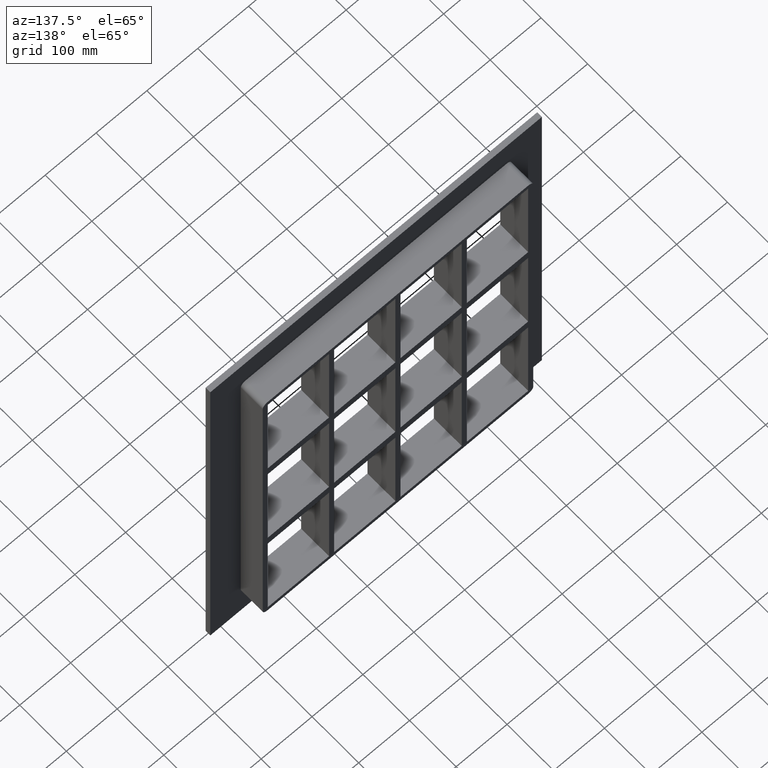
[diagram: clean part render]
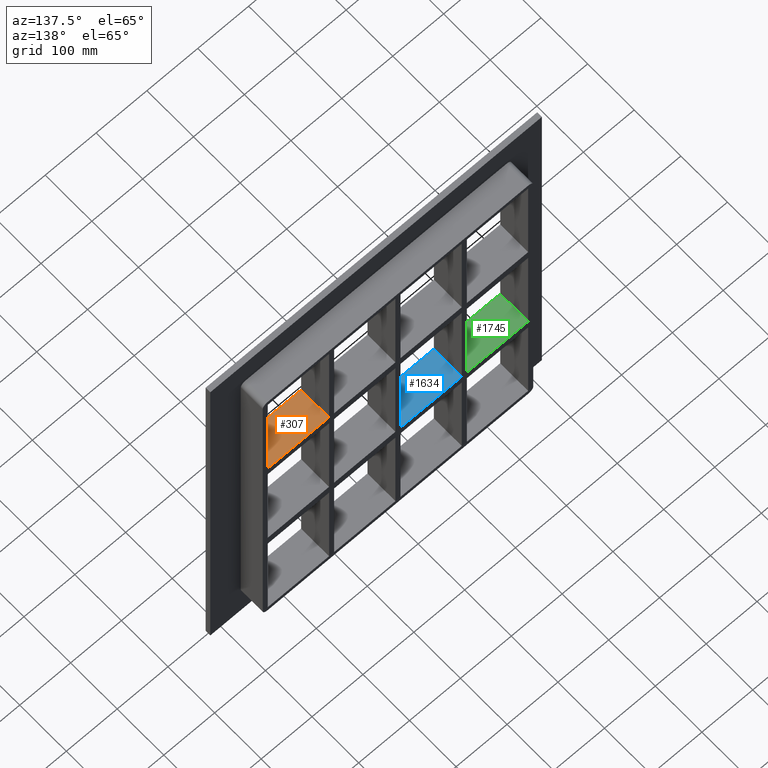
[diagram: same view with three faces highlighted in distinct colors, each labeled with its STEP entity id]
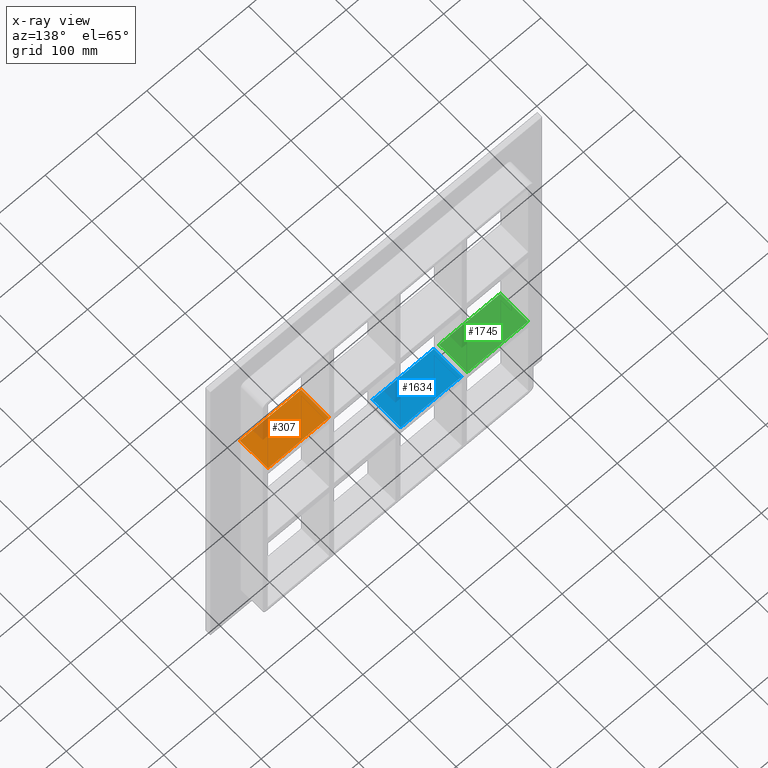
[diagram: x-ray of the same camera — body ghosted, the three highlighted faces saturated]
A machine part, auxiliary view with three faces highlighted in distinct colors.
The next image is the same camera in x-ray (body ghosted, the three faces saturated) — at least one of them is partly hidden behind the body in this view.
Their STEP definitions:

[orange] entity #307 — the highlighted planar face has unit normal (0, 0, 1).
#268=CARTESIAN_POINT('',(-255.99999999999972,-3.0,128.99999999999994));
#269=DIRECTION('',(0.0,0.0,1.0));
#270=DIRECTION('',(1.0,0.0,0.0));
#271=AXIS2_PLACEMENT_3D('',#268,#269,#270);
#272=PLANE('',#271);
#273=CARTESIAN_POINT('',(135.50000000000728,-3.0,128.99999999999994));
#274=VERTEX_POINT('',#273);
#275=CARTESIAN_POINT('',(135.50000000000728,57.0,128.99999999999994));
#276=VERTEX_POINT('',#275);
#277=CARTESIAN_POINT('',(135.50000000000728,-3.0,128.99999999999997));
#278=DIRECTION('',(0.0,1.0,0.0));
#279=VECTOR('',#278,60.0);
#280=LINE('',#277,#279);
#281=EDGE_CURVE('',#274,#276,#280,.T.);
#282=ORIENTED_EDGE('',*,*,#281,.F.);
#283=CARTESIAN_POINT('',(255.99999999999989,-3.0,128.99999999999994));
#284=VERTEX_POINT('',#283);
#285=CARTESIAN_POINT('',(135.50000000000733,-3.0,128.99999999999994));
#286=DIRECTION('',(1.0,0.0,0.0));
#287=VECTOR('',#286,120.49999999999255);
#288=LINE('',#285,#287);
#289=EDGE_CURVE('',#274,#284,#288,.T.);
#290=ORIENTED_EDGE('',*,*,#289,.T.);
#291=CARTESIAN_POINT('',(255.99999999999989,57.0,128.99999999999994));
#292=VERTEX_POINT('',#291);
#293=CARTESIAN_POINT('',(256.0,57.000000000000007,128.99999999999994));
#294=DIRECTION('',(0.0,-1.0,0.0));
#295=VECTOR('',#294,60.000000000000007);
#296=LINE('',#293,#295);
#297=EDGE_CURVE('',#292,#284,#296,.T.);
#298=ORIENTED_EDGE('',*,*,#297,.F.);
#299=CARTESIAN_POINT('',(135.50000000000733,57.0,128.99999999999994));
#300=DIRECTION('',(1.0,0.0,0.0));
#301=VECTOR('',#300,120.49999999999255);
#302=LINE('',#299,#301);
#303=EDGE_CURVE('',#276,#292,#302,.T.);
#304=ORIENTED_EDGE('',*,*,#303,.F.);
#305=EDGE_LOOP('',(#282,#290,#298,#304));
#306=FACE_OUTER_BOUND('',#305,.T.);
#307=ADVANCED_FACE('',(#306),#272,.T.);

[blue] entity #1634 — the highlighted planar face has unit normal (0, 0, 1).
#868=CARTESIAN_POINT('',(-125.49999999999272,57.0,-109.00000000000006));
#869=VERTEX_POINT('',#868);
#876=CARTESIAN_POINT('',(-5.000000000001375,57.0,-109.00000000000006));
#877=VERTEX_POINT('',#876);
#878=CARTESIAN_POINT('',(-125.49999999999272,57.0,-109.00000000000006));
#879=DIRECTION('',(1.0,0.0,0.0));
#880=VECTOR('',#879,120.49999999999136);
#881=LINE('',#878,#880);
#882=EDGE_CURVE('',#869,#877,#881,.T.);
#1157=CARTESIAN_POINT('',(-5.000000000001375,-3.0,-109.00000000000006));
#1158=VERTEX_POINT('',#1157);
#1159=CARTESIAN_POINT('',(-5.00000000000138,-3.0,-109.00000000000006));
#1160=DIRECTION('',(0.0,1.0,0.0));
#1161=VECTOR('',#1160,60.0);
#1162=LINE('',#1159,#1161);
#1163=EDGE_CURVE('',#1158,#877,#1162,.T.);
#1434=CARTESIAN_POINT('',(-125.49999999999272,-3.0,-109.00000000000006));
#1435=VERTEX_POINT('',#1434);
#1436=CARTESIAN_POINT('',(-125.49999999999272,-3.0,-109.00000000000006));
#1437=DIRECTION('',(1.0,0.0,0.0));
#1438=VECTOR('',#1437,120.49999999999136);
#1439=LINE('',#1436,#1438);
#1440=EDGE_CURVE('',#1435,#1158,#1439,.T.);
#1618=CARTESIAN_POINT('',(-255.99999999999972,-3.0,-109.00000000000006));
#1619=DIRECTION('',(0.0,0.0,1.0));
#1620=DIRECTION('',(1.0,0.0,0.0));
#1621=AXIS2_PLACEMENT_3D('',#1618,#1619,#1620);
#1622=PLANE('',#1621);
#1623=ORIENTED_EDGE('',*,*,#1163,.T.);
#1624=ORIENTED_EDGE('',*,*,#882,.F.);
#1625=CARTESIAN_POINT('',(-125.49999999999272,-3.0,-109.00000000000006));
#1626=DIRECTION('',(0.0,1.0,0.0));
#1627=VECTOR('',#1626,60.0);
#1628=LINE('',#1625,#1627);
#1629=EDGE_CURVE('',#1435,#869,#1628,.T.);
#1630=ORIENTED_EDGE('',*,*,#1629,.F.);
#1631=ORIENTED_EDGE('',*,*,#1440,.T.);
#1632=EDGE_LOOP('',(#1623,#1624,#1630,#1631));
#1633=FACE_OUTER_BOUND('',#1632,.T.);
#1634=ADVANCED_FACE('',(#1633),#1622,.T.);

[green] entity #1745 — the highlighted planar face has unit normal (0, 0, 1).
#642=CARTESIAN_POINT('',(-135.50000000000136,57.0,-109.00000000000006));
#643=VERTEX_POINT('',#642);
#650=CARTESIAN_POINT('',(-135.50000000000136,-3.0,-109.00000000000006));
#651=VERTEX_POINT('',#650);
#652=CARTESIAN_POINT('',(-135.50000000000139,57.0,-109.00000000000006));
#653=DIRECTION('',(0.0,-1.0,0.0));
#654=VECTOR('',#653,60.0);
#655=LINE('',#652,#654);
#656=EDGE_CURVE('',#643,#651,#655,.T.);
#773=CARTESIAN_POINT('',(-255.99999999999972,57.0,-109.00000000000006));
#774=VERTEX_POINT('',#773);
#781=CARTESIAN_POINT('',(-255.99999999999972,57.0,-109.00000000000006));
#782=DIRECTION('',(1.0,0.0,0.0));
#783=VECTOR('',#782,120.49999999999835);
#784=LINE('',#781,#783);
#785=EDGE_CURVE('',#774,#643,#784,.T.);
#1475=CARTESIAN_POINT('',(-255.99999999999972,-3.0,-109.00000000000006));
#1476=VERTEX_POINT('',#1475);
#1477=CARTESIAN_POINT('',(-255.99999999999972,-3.0,-109.00000000000006));
#1478=DIRECTION('',(1.0,0.0,0.0));
#1479=VECTOR('',#1478,120.49999999999835);
#1480=LINE('',#1477,#1479);
#1481=EDGE_CURVE('',#1476,#651,#1480,.T.);
#1729=CARTESIAN_POINT('',(-255.99999999999972,-3.0,-109.00000000000006));
#1730=DIRECTION('',(0.0,0.0,1.0));
#1731=DIRECTION('',(1.0,0.0,0.0));
#1732=AXIS2_PLACEMENT_3D('',#1729,#1730,#1731);
#1733=PLANE('',#1732);
#1734=ORIENTED_EDGE('',*,*,#656,.F.);
#1735=ORIENTED_EDGE('',*,*,#785,.F.);
#1736=CARTESIAN_POINT('',(-256.0,-3.0,-109.00000000000006));
#1737=DIRECTION('',(0.0,1.0,0.0));
#1738=VECTOR('',#1737,60.000000000000007);
#1739=LINE('',#1736,#1738);
#1740=EDGE_CURVE('',#1476,#774,#1739,.T.);
#1741=ORIENTED_EDGE('',*,*,#1740,.F.);
#1742=ORIENTED_EDGE('',*,*,#1481,.T.);
#1743=EDGE_LOOP('',(#1734,#1735,#1741,#1742));
#1744=FACE_OUTER_BOUND('',#1743,.T.);
#1745=ADVANCED_FACE('',(#1744),#1733,.T.);